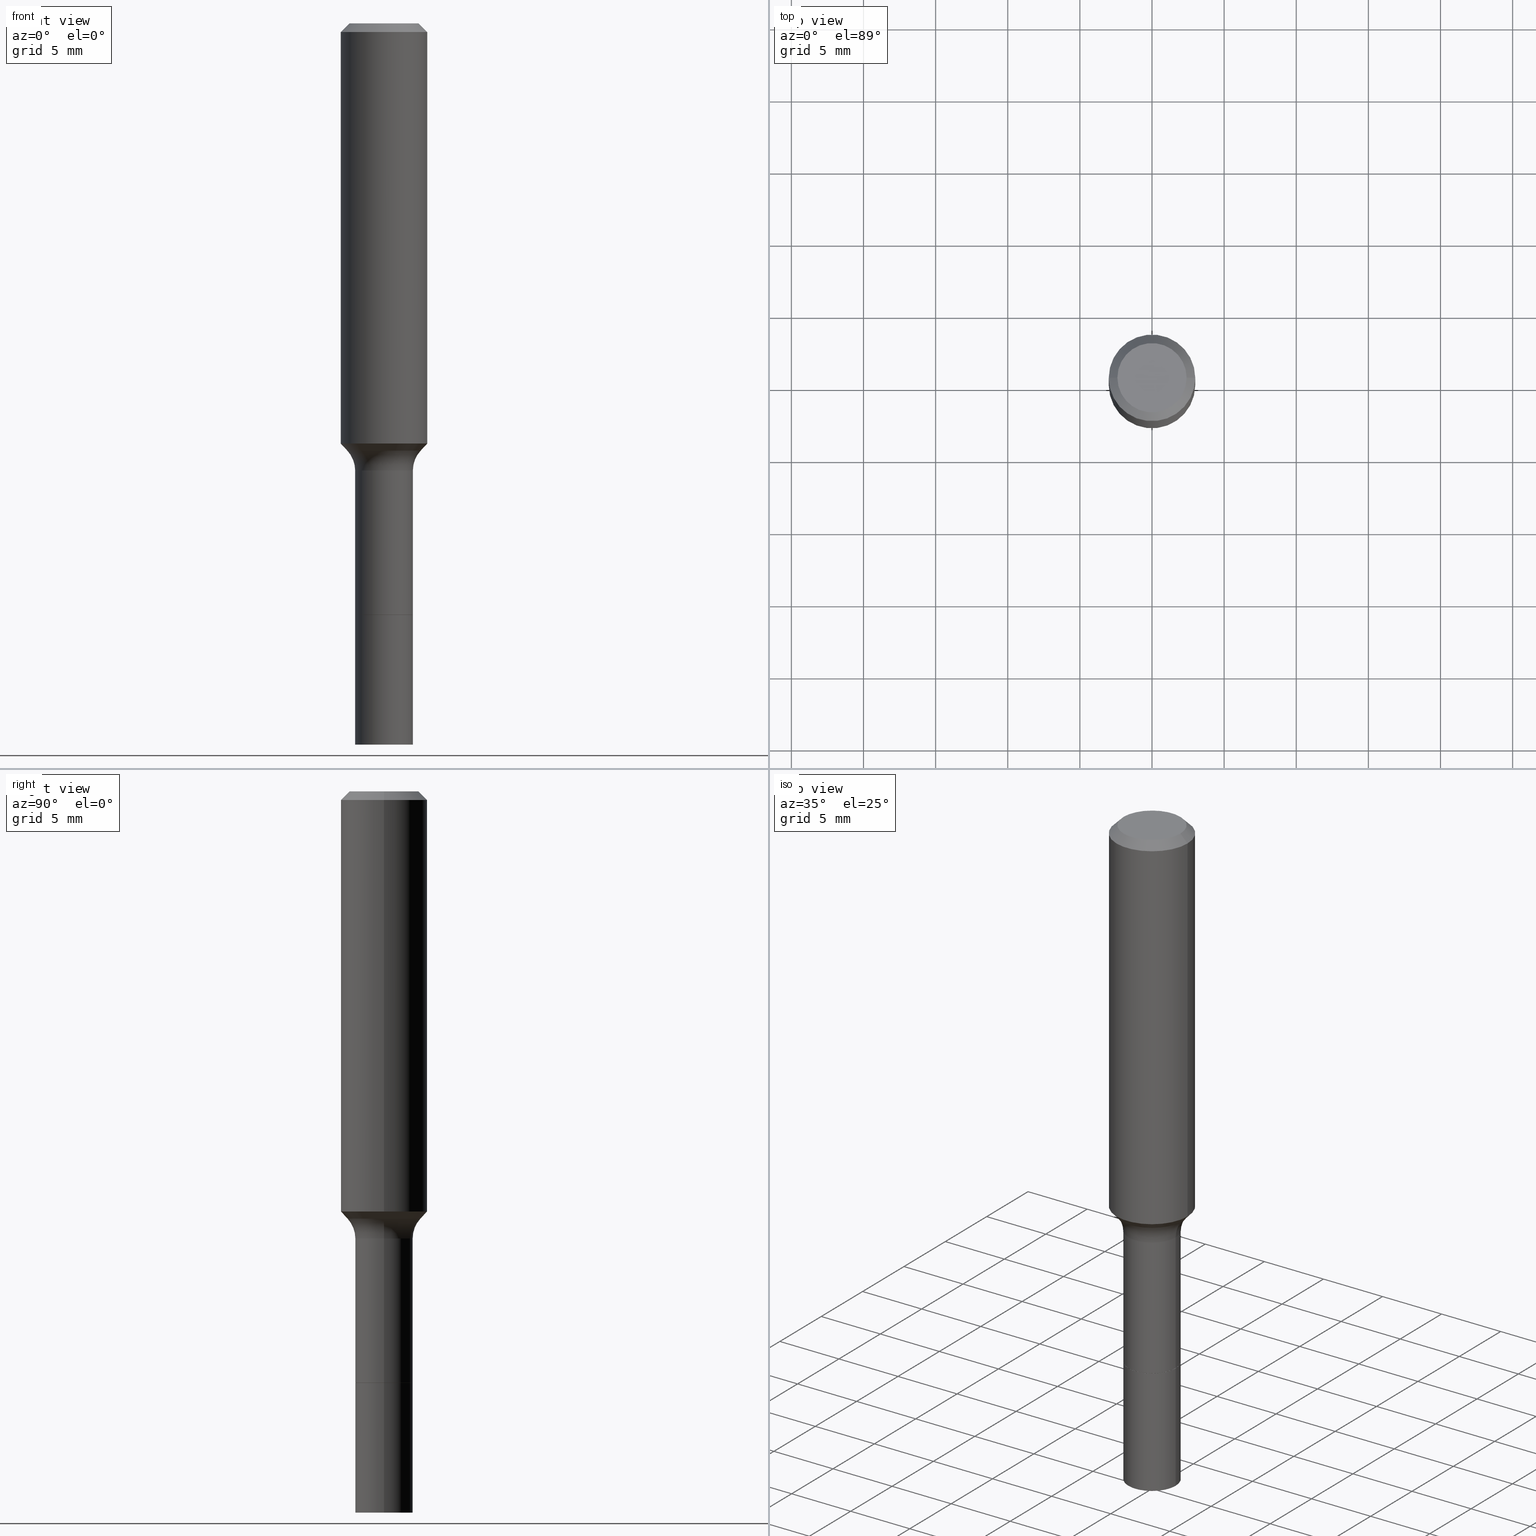
[diagram: canonical four-view strip — front | top / right | iso, engineering-drawing reading convention]
A machine part, canonical four-view strip (front | top / right | iso — engineering-drawing reading convention). The complete STEP part file that produces these views, byte-faithful:
ISO-10303-21;
HEADER;
FILE_DESCRIPTION (( 'STEP AP203' ),
    '1' );
FILE_NAME ('67085.STEP',
    '2025-04-01T15:27:59',
    ( '' ),
    ( '' ),
    'SwSTEP 2.0',
    'SolidWorks 2024',
    '' );
FILE_SCHEMA (( 'CONFIG_CONTROL_DESIGN' ));
ENDSEC;

DATA;
#1 = DIRECTION ( 'NONE',  ( -1.000000000000000000, 6.982962677686265922E-15, -4.876176775795935793E-29 ) ) ;
#2 = EDGE_LOOP ( 'NONE', ( #42, #359 ) ) ;
#3 = CARTESIAN_POINT ( 'NONE',  ( 2.984694677948959472E-29, -4.261352974058059028E-15, -1.220499999999999918 ) ) ;
#4 = ORIENTED_EDGE ( 'NONE', *, *, #140, .T. ) ;
#5 = EDGE_CURVE ( 'NONE', #391, #61, #286, .T. ) ;
#6 = PLANE ( 'NONE',  #143 ) ;
#7 = AXIS2_PLACEMENT_3D ( 'NONE', #456, #220, #366 ) ;
#8 = ADVANCED_FACE ( 'NONE', ( #362 ), #515, .T. ) ;
#9 = VERTEX_POINT ( 'NONE', #255 ) ;
#10 = ORIENTED_EDGE ( 'NONE', *, *, #167, .T. ) ;
#11 = EDGE_CURVE ( 'NONE', #435, #438, #134, .T. ) ;
#12 = CONICAL_SURFACE ( 'NONE', #35, 0.1180999999999999966, 0.7853981633974461696 ) ;
#13 = CARTESIAN_POINT ( 'NONE',  ( -0.1002417038704663810, -3.358598065221922092E-15, -1.165940131195000173 ) ) ;
#14 = CLOSED_SHELL ( 'NONE', ( #22, #471, #387, #322 ) ) ;
#15 = DIRECTION ( 'NONE',  ( 1.000000000000000000, -6.982962677686266711E-15, 0.000000000000000000 ) ) ;
#16 = EDGE_CURVE ( 'NONE', #350, #37, #96, .T. ) ;
#17 = DIRECTION ( 'NONE',  ( -2.445468806185136597E-29, 3.491481338843145583E-15, 1.000000000000000000 ) ) ;
#18 = LOCAL_TIME ( 11, 27, 59.00000000000000000, #265 ) ;
#19 = AXIS2_PLACEMENT_3D ( 'NONE', #352, #398, #474 ) ;
#20 = LINE ( 'NONE', #408, #193 ) ;
#21 = CARTESIAN_POINT ( 'NONE',  ( 3.948209387585902623E-29, -5.636996621562256693E-15, -1.614499999999999602 ) ) ;
#22 = ADVANCED_FACE ( 'NONE', ( #495 ), #293, .T. ) ;
#23 = DIRECTION ( 'NONE',  ( -2.445468806185136597E-29, 3.491481338843145583E-15, 1.000000000000000000 ) ) ;
#24 = CALENDAR_DATE ( 2025, 1, 4 ) ;
#25 = ORIENTED_EDGE ( 'NONE', *, *, #502, .T. ) ;
#26 = CC_DESIGN_APPROVAL ( #282, ( #257 ) ) ;
#27 = CIRCLE ( 'NONE', #457, 0.09447999999999998066 ) ;
#28 = DIRECTION ( 'NONE',  ( -1.000000000000000000, 6.982962677686266711E-15, 0.000000000000000000 ) ) ;
#29 = APPROVAL_ROLE ( '' ) ;
#30 = CARTESIAN_POINT ( 'NONE',  ( 0.07875000000000004219, -6.186904932430052406E-15, -1.614500000000000046 ) ) ;
#31 = PERSON_AND_ORGANIZATION_ROLE ( 'classification_officer' ) ;
#32 = DIRECTION ( 'NONE',  ( -2.445468806185136597E-29, 3.491481338843145583E-15, 1.000000000000000000 ) ) ;
#33 = EDGE_LOOP ( 'NONE', ( #70, #266, #4, #127 ) ) ;
#34 = DIRECTION ( 'NONE',  ( 2.438088387897960049E-29, -3.491481338843145188E-15, -1.000000000000000000 ) ) ;
#35 = AXIS2_PLACEMENT_3D ( 'NONE', #232, #509, #28 ) ;
#36 = DIRECTION ( 'NONE',  ( -2.445468806185136597E-29, 3.491481338843145583E-15, 1.000000000000000000 ) ) ;
#37 = VERTEX_POINT ( 'NONE', #99 ) ;
#38 = DIRECTION ( 'NONE',  ( -2.445468806185136597E-29, 3.491481338843145583E-15, 1.000000000000000000 ) ) ;
#39 = ORIENTED_EDGE ( 'NONE', *, *, #494, .T. ) ;
#40 = APPROVAL_DATE_TIME ( #227, #361 ) ;
#41 = DIRECTION ( 'NONE',  ( 1.000000000000000000, -6.982962677686266711E-15, 0.000000000000000000 ) ) ;
#42 = ORIENTED_EDGE ( 'NONE', *, *, #430, .F. ) ;
#43 = ADVANCED_FACE ( 'NONE', ( #52 ), #353, .T. ) ;
#44 = EDGE_CURVE ( 'NONE', #512, #200, #481, .T. ) ;
#45 = CARTESIAN_POINT ( 'NONE',  ( 3.946986653182810382E-29, -5.635250880892837556E-15, -1.614000000000000101 ) ) ;
#46 = VERTEX_POINT ( 'NONE', #498 ) ;
#47 = DIRECTION ( 'NONE',  ( 2.445468806185136597E-29, -3.491481338843145583E-15, -1.000000000000000000 ) ) ;
#48 = EDGE_CURVE ( 'NONE', #73, #81, #274, .T. ) ;
#49 = ORIENTED_EDGE ( 'NONE', *, *, #295, .F. ) ;
#50 = CARTESIAN_POINT ( 'NONE',  ( 0.09447999999999998066, -7.704367267948738690E-16, -3.085620075131172158E-17 ) ) ;
#51 = DIRECTION ( 'NONE',  ( -2.445468806185136597E-29, 3.491481338843145583E-15, 1.000000000000000000 ) ) ;
#52 = FACE_OUTER_BOUND ( 'NONE', #482, .T. ) ;
#53 = PRODUCT_RELATED_PRODUCT_CATEGORY ( 'detail', '', ( #245 ) ) ;
#54 = AXIS2_PLACEMENT_3D ( 'NONE', #59, #260, #182 ) ;
#55 = DIRECTION ( 'NONE',  ( -2.445468806185136597E-29, 3.491481338843145583E-15, 1.000000000000000000 ) ) ;
#56 = DIRECTION ( 'NONE',  ( 1.000000000000000000, -6.982962677686267499E-15, 0.000000000000000000 ) ) ;
#57 = CIRCLE ( 'NONE', #90, 0.07999999999999996003 ) ;
#58 = EDGE_CURVE ( 'NONE', #73, #37, #284, .T. ) ;
#59 = CARTESIAN_POINT ( 'NONE',  ( 3.948209387585902623E-29, -5.636996621562258271E-15, -1.614500000000000046 ) ) ;
#60 = CARTESIAN_POINT ( 'NONE',  ( 0.1181000000000000660, -8.246878922347485584E-16, 5.758764772215003944E-30 ) ) ;
#61 = VERTEX_POINT ( 'NONE', #335 ) ;
#62 = CARTESIAN_POINT ( 'NONE',  ( 0.000000000000000000, 0.000000000000000000, 0.000000000000000000 ) ) ;
#63 = AXIS2_PLACEMENT_3D ( 'NONE', #480, #314, #246 ) ;
#64 = DATE_TIME_ROLE ( 'classification_date' ) ;
#65 = VECTOR ( 'NONE', #440, 39.37007874015748143 ) ;
#66 = DIRECTION ( 'NONE',  ( -6.982962677686266711E-15, -1.000000000000000000, 3.491481338843145583E-15 ) ) ;
#67 = EDGE_LOOP ( 'NONE', ( #343, #462, #470, #205 ) ) ;
#68 = CC_DESIGN_PERSON_AND_ORGANIZATION_ASSIGNMENT ( #461, #31, ( #192 ) ) ;
#69 = DIRECTION ( 'NONE',  ( 1.000000000000000000, -6.982962677686261977E-15, 0.000000000000000000 ) ) ;
#70 = ORIENTED_EDGE ( 'NONE', *, *, #167, .F. ) ;
#71 = VECTOR ( 'NONE', #333, 39.37007874015748143 ) ;
#72 = CYLINDRICAL_SURFACE ( 'NONE', #331, 0.1181000000000000660 ) ;
#73 = VERTEX_POINT ( 'NONE', #13 ) ;
#74 = CIRCLE ( 'NONE', #219, 0.1002417038704664781 ) ;
#75 = CARTESIAN_POINT ( 'NONE',  ( 5.776197320209328408E-31, -8.246878922347560526E-17, -0.02362000000000014435 ) ) ;
#76 = ORIENTED_EDGE ( 'NONE', *, *, #58, .T. ) ;
#77 = MANIFOLD_SOLID_BREP ( 'Body-Move/Copy2[2]', #497 ) ;
#78 = APPLICATION_CONTEXT ( 'configuration controlled 3d designs of mechanical parts and assemblies' ) ;
#79 = COORDINATED_UNIVERSAL_TIME_OFFSET ( 5, 0, .BEHIND. ) ;
#80 = CARTESIAN_POINT ( 'NONE',  ( -0.07875000000000011158, -5.695436414126414610E-15, -1.968500000000000139 ) ) ;
#81 = VERTEX_POINT ( 'NONE', #365 ) ;
#82 = PERSON ( 'UNSPECIFIED', 'UNSPECIFIED', 'UNSPECIFIED', ('UNSPECIFIED'), ('UNSPECIFIED'), ('UNSPECIFIED') ) ;
#83 = AXIS2_PLACEMENT_3D ( 'NONE', #175, #55, #56 ) ;
#84 = CARTESIAN_POINT ( 'NONE',  ( 5.776197320209328408E-31, -8.246878922347560526E-17, -0.02362000000000014435 ) ) ;
#85 = ORIENTED_EDGE ( 'NONE', *, *, #140, .F. ) ;
#86 = LOCAL_TIME ( 11, 27, 59.00000000000000000, #79 ) ;
#87 = CARTESIAN_POINT ( 'NONE',  ( 2.851270220716778580E-29, -4.070858210275671756E-15, -1.165940131195000173 ) ) ;
#88 = AXIS2_PLACEMENT_3D ( 'NONE', #289, #47, #210 ) ;
#89 = DIRECTION ( 'NONE',  ( -2.445468806185136877E-29, 3.491481338843145188E-15, 1.000000000000000000 ) ) ;
#90 = AXIS2_PLACEMENT_3D ( 'NONE', #345, #66, #464 ) ;
#91 = DIRECTION ( 'NONE',  ( 1.000000000000000000, -6.982962677686269077E-15, 0.000000000000000000 ) ) ;
#92 = EDGE_LOOP ( 'NONE', ( #171, #340, #132, #155 ) ) ;
#93 = PRODUCT_DEFINITION_SHAPE ( 'NONE', 'NONE',  #257 ) ;
#94 = DIRECTION ( 'NONE',  ( 1.000000000000000000, -6.982962677686266711E-15, 0.000000000000000000 ) ) ;
#95 = DIRECTION ( 'NONE',  ( 1.000000000000000000, -6.982962677686266711E-15, 0.000000000000000000 ) ) ;
#96 = LINE ( 'NONE', #411, #375 ) ;
#97 = DIRECTION ( 'NONE',  ( -2.445468806185136877E-29, 3.491481338843145188E-15, 1.000000000000000000 ) ) ;
#98 = ADVANCED_FACE ( 'NONE', ( #496 ), #216, .T. ) ;
#99 = CARTESIAN_POINT ( 'NONE',  ( -0.07874999999999994504, -4.388749523064369885E-15, -1.220499999999999918 ) ) ;
#100 = CC_DESIGN_PERSON_AND_ORGANIZATION_ASSIGNMENT ( #459, #339, ( #409 ) ) ;
#101 = LINE ( 'NONE', #30, #131 ) ;
#102 = MECHANICAL_CONTEXT ( 'NONE', #78, 'mechanical' ) ;
#103 = APPLICATION_CONTEXT ( 'configuration controlled 3d designs of mechanical parts and assemblies' ) ;
#104 = DIRECTION ( 'NONE',  ( -2.445468806185136597E-29, 3.491481338843145583E-15, 1.000000000000000000 ) ) ;
#105 = CIRCLE ( 'NONE', #188, 0.07874999999999994504 ) ;
#106 = ORIENTED_EDGE ( 'NONE', *, *, #138, .T. ) ;
#107 = CARTESIAN_POINT ( 'NONE',  ( 0.000000000000000000, 0.000000000000000000, 0.000000000000000000 ) ) ;
#108 = EDGE_CURVE ( 'NONE', #61, #250, #181, .T. ) ;
#109 = COORDINATED_UNIVERSAL_TIME_OFFSET ( 5, 0, .BEHIND. ) ;
#110 = APPROVAL_PERSON_ORGANIZATION ( #346, #282, #148 ) ;
#111 = CIRCLE ( 'NONE', #401, 0.07875000000000000056 ) ;
#112 = DIRECTION ( 'NONE',  ( -2.445468806185136877E-29, 3.491481338843145188E-15, 1.000000000000000000 ) ) ;
#113 = DATE_AND_TIME ( #163, #86 ) ;
#114 = ORIENTED_EDGE ( 'NONE', *, *, #390, .F. ) ;
#115 = PLANE ( 'NONE',  #426 ) ;
#116 = ORIENTED_EDGE ( 'NONE', *, *, #136, .T. ) ;
#117 = ADVANCED_FACE ( 'NONE', ( #373 ), #394, .T. ) ;
#118 = DIRECTION ( 'NONE',  ( -2.445468806185136597E-29, 3.491481338843145583E-15, 1.000000000000000000 ) ) ;
#119 = CIRCLE ( 'NONE', #444, 0.07825000000000000011 ) ;
#120 = DIRECTION ( 'NONE',  ( -2.445468806185136597E-29, 3.491481338843145583E-15, 1.000000000000000000 ) ) ;
#121 = ORIENTED_EDGE ( 'NONE', *, *, #48, .T. ) ;
#122 = CONICAL_SURFACE ( 'NONE', #19, 0.1002417038704664781, 0.7504915783575603072 ) ;
#123 = LINE ( 'NONE', #434, #371 ) ;
#124 = EDGE_LOOP ( 'NONE', ( #231, #239, #233, #39 ) ) ;
#125 = VECTOR ( 'NONE', #89, 39.37007874015748143 ) ;
#126 = DIRECTION ( 'NONE',  ( -2.445468806185136597E-29, 3.491481338843145583E-15, 1.000000000000000000 ) ) ;
#127 = ORIENTED_EDGE ( 'NONE', *, *, #240, .F. ) ;
#128 = CIRCLE ( 'NONE', #311, 0.07875000000000011158 ) ;
#129 = DIRECTION ( 'NONE',  ( 1.000000000000000000, -6.982962677686265133E-15, 0.000000000000000000 ) ) ;
#130 = ORIENTED_EDGE ( 'NONE', *, *, #412, .F. ) ;
#131 = VECTOR ( 'NONE', #187, 39.37007874015748143 ) ;
#132 = ORIENTED_EDGE ( 'NONE', *, *, #138, .F. ) ;
#133 = AXIS2_PLACEMENT_3D ( 'NONE', #176, #256, #413 ) ;
#134 = LINE ( 'NONE', #449, #71 ) ;
#135 = CIRCLE ( 'NONE', #152, 0.07875000000000000056 ) ;
#136 = EDGE_CURVE ( 'NONE', #37, #438, #105, .T. ) ;
#137 = DIRECTION ( 'NONE',  ( -2.445468806185136597E-29, 3.491481338843145583E-15, 1.000000000000000000 ) ) ;
#138 = EDGE_CURVE ( 'NONE', #438, #37, #431, .T. ) ;
#139 = FACE_OUTER_BOUND ( 'NONE', #272, .T. ) ;
#140 = EDGE_CURVE ( 'NONE', #9, #435, #20, .T. ) ;
#141 = DIRECTION ( 'NONE',  ( 1.000000000000000000, -6.982962677686267499E-15, 0.000000000000000000 ) ) ;
#142 = CARTESIAN_POINT ( 'NONE',  ( -0.1180999999999999966, 7.422191030112725094E-16, -0.02362000000000014435 ) ) ;
#143 = AXIS2_PLACEMENT_3D ( 'NONE', #161, #321, #1 ) ;
#144 = CARTESIAN_POINT ( 'NONE',  ( -0.1181000000000001354, -3.164843004536825664E-15, -1.146789453211333409 ) ) ;
#145 = CARTESIAN_POINT ( 'NONE',  ( 0.000000000000000000, 0.000000000000000000, 0.000000000000000000 ) ) ;
#146 = APPROVAL ( #392, 'UNSPECIFIED' ) ;
#147 = DIRECTION ( 'NONE',  ( -1.000000000000000000, 6.982962677686265922E-15, -4.876176775795935793E-29 ) ) ;
#148 = APPROVAL_ROLE ( '' ) ;
#149 = CARTESIAN_POINT ( 'NONE',  ( 0.07875000000000000056, -6.186904932430050828E-15, -1.614500000000000046 ) ) ;
#150 = PERSON_AND_ORGANIZATION ( #82, #202 ) ;
#151 = EDGE_LOOP ( 'NONE', ( #236, #197 ) ) ;
#152 = AXIS2_PLACEMENT_3D ( 'NONE', #45, #36, #513 ) ;
#153 = TOROIDAL_SURFACE ( 'NONE', #466, 0.1587499999999999190, 0.07999999999999996003 ) ;
#154 = DIRECTION ( 'NONE',  ( 1.000000000000000000, -6.982962677686265922E-15, 4.876176775795935793E-29 ) ) ;
#155 = ORIENTED_EDGE ( 'NONE', *, *, #11, .F. ) ;
#156 = EDGE_CURVE ( 'NONE', #243, #165, #292, .T. ) ;
#157 = DIRECTION ( 'NONE',  ( -2.445468806185136597E-29, 3.491481338843145583E-15, 1.000000000000000000 ) ) ;
#158 = ORIENTED_EDGE ( 'NONE', *, *, #502, .F. ) ;
#159 = AXIS2_PLACEMENT_3D ( 'NONE', #215, #451, #327 ) ;
#160 = ADVANCED_FACE ( 'NONE', ( #139 ), #486, .F. ) ;
#161 = CARTESIAN_POINT ( 'NONE',  ( 4.813905344975441835E-29, -6.872981015512731707E-15, -1.968500000000000139 ) ) ;
#162 = ORIENTED_EDGE ( 'NONE', *, *, #44, .F. ) ;
#163 = CALENDAR_DATE ( 2025, 1, 4 ) ;
#164 = CARTESIAN_POINT ( 'NONE',  ( 3.948209387585902623E-29, -5.636996621562256693E-15, -1.614499999999999602 ) ) ;
#165 = VERTEX_POINT ( 'NONE', #454 ) ;
#166 = CARTESIAN_POINT ( 'NONE',  ( 3.948209387585902623E-29, -5.636996621562256693E-15, -1.614499999999999602 ) ) ;
#167 = EDGE_CURVE ( 'NONE', #325, #350, #213, .T. ) ;
#168 = ORIENTED_EDGE ( 'NONE', *, *, #48, .F. ) ;
#169 = AXIS2_PLACEMENT_3D ( 'NONE', #259, #137, #95 ) ;
#170 = DIRECTION ( 'NONE',  ( -2.445468806185136597E-29, 3.491481338843145583E-15, 1.000000000000000000 ) ) ;
#171 = ORIENTED_EDGE ( 'NONE', *, *, #407, .T. ) ;
#172 =( CONVERSION_BASED_UNIT ( 'INCH', #363 ) LENGTH_UNIT ( ) NAMED_UNIT ( #288 ) );
#173 = AXIS2_PLACEMENT_3D ( 'NONE', #180, #417, #374 ) ;
#174 = ORIENTED_EDGE ( 'NONE', *, *, #287, .F. ) ;
#175 = CARTESIAN_POINT ( 'NONE',  ( 3.948209387585902623E-29, -5.636996621562256693E-15, -1.614499999999999602 ) ) ;
#176 = CARTESIAN_POINT ( 'NONE',  ( -0.1587499999999999190, -3.133366381038900756E-15, -1.220499999999999918 ) ) ;
#177 = LOCAL_TIME ( 11, 27, 59.00000000000000000, #507 ) ;
#178 = DIRECTION ( 'NONE',  ( 1.000000000000000000, -6.982962677686267499E-15, 4.876176775795935793E-29 ) ) ;
#179 = CIRCLE ( 'NONE', #468, 0.07875000000000000056 ) ;
#180 = CARTESIAN_POINT ( 'NONE',  ( 2.984694677948959472E-29, -4.261352974058059028E-15, -1.220499999999999918 ) ) ;
#181 = CIRCLE ( 'NONE', #54, 0.07875000000000000056 ) ;
#182 = DIRECTION ( 'NONE',  ( 1.000000000000000000, -6.982962677686261977E-15, 0.000000000000000000 ) ) ;
#183 = UNCERTAINTY_MEASURE_WITH_UNIT (LENGTH_MEASURE( 1.000000000000000082E-05 ), #172, 'distance_accuracy_value', 'NONE');
#184 = DIRECTION ( 'NONE',  ( 1.000000000000000000, -6.982962677686261977E-15, 0.000000000000000000 ) ) ;
#185 = FACE_OUTER_BOUND ( 'NONE', #279, .T. ) ;
#186 = APPROVAL_DATE_TIME ( #113, #146 ) ;
#187 = DIRECTION ( 'NONE',  ( -2.445468806185136877E-29, 3.491481338843145188E-15, 1.000000000000000000 ) ) ;
#188 = AXIS2_PLACEMENT_3D ( 'NONE', #329, #51, #94 ) ;
#189 = DIRECTION ( 'NONE',  ( -2.445468806185136597E-29, 3.491481338843145583E-15, 1.000000000000000000 ) ) ;
#190 = EDGE_CURVE ( 'NONE', #200, #512, #27, .T. ) ;
#191 = ORIENTED_EDGE ( 'NONE', *, *, #190, .T. ) ;
#192 = SECURITY_CLASSIFICATION ( '', '', #383 ) ;
#193 = VECTOR ( 'NONE', #492, 39.37007874015748854 ) ;
#194 = CARTESIAN_POINT ( 'NONE',  ( 7.884162847242652072E-29, -4.872467750967618044E-19, -1.614500000000000046 ) ) ;
#195 = ADVANCED_FACE ( 'NONE', ( #458 ), #376, .F. ) ;
#196 = ORIENTED_EDGE ( 'NONE', *, *, #491, .F. ) ;
#197 = ORIENTED_EDGE ( 'NONE', *, *, #108, .T. ) ;
#198 = PERSON_AND_ORGANIZATION ( #82, #202 ) ;
#199 = FACE_OUTER_BOUND ( 'NONE', #2, .T. ) ;
#200 = VERTEX_POINT ( 'NONE', #506 ) ;
#201 = CIRCLE ( 'NONE', #206, 0.1181000000000001354 ) ;
#202 = ORGANIZATION ( 'UNSPECIFIED', 'UNSPECIFIED', '' ) ;
#203 = ADVANCED_FACE ( 'NONE', ( #419 ), #12, .T. ) ;
#204 = CARTESIAN_POINT ( 'NONE',  ( 4.813905344975441835E-29, -6.872981015512731707E-15, -1.968500000000000139 ) ) ;
#205 = ORIENTED_EDGE ( 'NONE', *, *, #334, .F. ) ;
#206 = AXIS2_PLACEMENT_3D ( 'NONE', #276, #118, #358 ) ;
#207 = DIRECTION ( 'NONE',  ( -2.445468806185136597E-29, 3.491481338843145583E-15, 1.000000000000000000 ) ) ;
#208 = ORIENTED_EDGE ( 'NONE', *, *, #136, .F. ) ;
#209 = AXIS2_PLACEMENT_3D ( 'NONE', #253, #490, #368 ) ;
#210 = DIRECTION ( 'NONE',  ( -1.000000000000000000, 6.982962677686266711E-15, 0.000000000000000000 ) ) ;
#211 = ADVANCED_FACE ( 'NONE', ( #185 ), #115, .F. ) ;
#212 = ORIENTED_EDGE ( 'NONE', *, *, #430, .T. ) ;
#213 = LINE ( 'NONE', #386, #270 ) ;
#214 = CC_DESIGN_PERSON_AND_ORGANIZATION_ASSIGNMENT ( #198, #306, ( #257 ) ) ;
#215 = CARTESIAN_POINT ( 'NONE',  ( 3.948209387585902623E-29, -5.636996621562258271E-15, -1.614500000000000046 ) ) ;
#216 = CYLINDRICAL_SURFACE ( 'NONE', #297, 0.07874999999999997280 ) ;
#217 = CC_DESIGN_APPROVAL ( #361, ( #409 ) ) ;
#218 = DIRECTION ( 'NONE',  ( -2.445468806185136597E-29, 3.491481338843145583E-15, 1.000000000000000000 ) ) ;
#219 = AXIS2_PLACEMENT_3D ( 'NONE', #87, #207, #406 ) ;
#220 = DIRECTION ( 'NONE',  ( -2.445468806185136597E-29, 3.491481338843145583E-15, 1.000000000000000000 ) ) ;
#221 = DIRECTION ( 'NONE',  ( 1.000000000000000000, -6.982962677686267499E-15, 4.875432709231658792E-29 ) ) ;
#222 = DATE_TIME_ROLE ( 'creation_date' ) ;
#223 = ORIENTED_EDGE ( 'NONE', *, *, #156, .F. ) ;
#224 = FACE_OUTER_BOUND ( 'NONE', #92, .T. ) ;
#225 = PERSON_AND_ORGANIZATION_ROLE ( 'creator' ) ;
#226 = CARTESIAN_POINT ( 'NONE',  ( 3.948209387585902623E-29, -5.636996621562258271E-15, -1.614500000000000046 ) ) ;
#227 = DATE_AND_TIME ( #24, #518 ) ;
#228 = ORIENTED_EDGE ( 'NONE', *, *, #5, .T. ) ;
#229 = ADVANCED_FACE ( 'NONE', ( #262 ), #72, .T. ) ;
#230 = CARTESIAN_POINT ( 'NONE',  ( 3.948209387585902623E-29, -5.636996621562258271E-15, -1.614500000000000046 ) ) ;
#231 = ORIENTED_EDGE ( 'NONE', *, *, #489, .F. ) ;
#232 = CARTESIAN_POINT ( 'NONE',  ( 5.776197320209328408E-31, -8.246878922347560526E-17, -0.02362000000000014435 ) ) ;
#233 = ORIENTED_EDGE ( 'NONE', *, *, #295, .T. ) ;
#234 = AXIS2_PLACEMENT_3D ( 'NONE', #84, #170, #41 ) ;
#235 = CARTESIAN_POINT ( 'NONE',  ( 0.07874999999999994504, -4.811261284925852373E-15, -1.220499999999999918 ) ) ;
#236 = ORIENTED_EDGE ( 'NONE', *, *, #248, .T. ) ;
#237 =( NAMED_UNIT ( * ) SI_UNIT ( $, .STERADIAN. ) SOLID_ANGLE_UNIT ( ) );
#238 = CARTESIAN_POINT ( 'NONE',  ( -0.1002417038704664781, -3.358598065221921304E-15, -1.165940131195000173 ) ) ;
#239 = ORIENTED_EDGE ( 'NONE', *, *, #190, .F. ) ;
#240 = EDGE_CURVE ( 'NONE', #350, #435, #111, .T. ) ;
#241 = APPROVAL_STATUS ( 'not_yet_approved' ) ;
#242 = LINE ( 'NONE', #315, #446 ) ;
#243 = VERTEX_POINT ( 'NONE', #144 ) ;
#244 = APPROVAL_PERSON_ORGANIZATION ( #150, #361, #377 ) ;
#245 = PRODUCT ( '67085', '67085', '', ( #102 ) ) ;
#246 = DIRECTION ( 'NONE',  ( 1.000000000000000000, -6.982962677686270655E-15, 0.000000000000000000 ) ) ;
#247 = ORIENTED_EDGE ( 'NONE', *, *, #511, .T. ) ;
#248 = EDGE_CURVE ( 'NONE', #250, #61, #179, .T. ) ;
#249 = DIRECTION ( 'NONE',  ( -2.445468806185136597E-29, 3.491481338843145583E-15, 1.000000000000000000 ) ) ;
#250 = VERTEX_POINT ( 'NONE', #149 ) ;
#251 =( NAMED_UNIT ( * ) PLANE_ANGLE_UNIT ( ) SI_UNIT ( $, .RADIAN. ) );
#252 = CC_DESIGN_DATE_AND_TIME_ASSIGNMENT ( #469, #222, ( #257 ) ) ;
#253 = CARTESIAN_POINT ( 'NONE',  ( 2.984694677948959472E-29, -4.261352974058059028E-15, -1.220499999999999918 ) ) ;
#254 = AXIS2_PLACEMENT_3D ( 'NONE', #75, #447, #404 ) ;
#255 = CARTESIAN_POINT ( 'NONE',  ( 0.07825000000000000011, -6.183413451091207821E-15, -1.614499999999999602 ) ) ;
#256 = DIRECTION ( 'NONE',  ( 7.105427357601001859E-15, 1.000000000000000000, -3.491481338843145583E-15 ) ) ;
#257 = PRODUCT_DEFINITION ( 'UNKNOWN', '', #409, #305 ) ;
#258 = AXIS2_PLACEMENT_3D ( 'NONE', #21, #298, #141 ) ;
#259 = CARTESIAN_POINT ( 'NONE',  ( 2.851270220716778580E-29, -4.070858210275671756E-15, -1.165940131195000173 ) ) ;
#260 = DIRECTION ( 'NONE',  ( -2.445468806185136597E-29, 3.491481338843145583E-15, 1.000000000000000000 ) ) ;
#261 = AXIS2_PLACEMENT_3D ( 'NONE', #107, #189, #503 ) ;
#262 = FACE_OUTER_BOUND ( 'NONE', #67, .T. ) ;
#263 = CALENDAR_DATE ( 2025, 1, 4 ) ;
#264 = DIRECTION ( 'NONE',  ( -2.438088387897960049E-29, 3.491481338843145188E-15, 1.000000000000000000 ) ) ;
#265 = COORDINATED_UNIVERSAL_TIME_OFFSET ( 5, 0, .BEHIND. ) ;
#266 = ORIENTED_EDGE ( 'NONE', *, *, #491, .T. ) ;
#267 = AXIS2_PLACEMENT_3D ( 'NONE', #393, #249, #129 ) ;
#268 = DIRECTION ( 'NONE',  ( 1.000000000000000000, -6.982962677686266711E-15, 4.876176775795936353E-29 ) ) ;
#269 = COORDINATED_UNIVERSAL_TIME_OFFSET ( 5, 0, .BEHIND. ) ;
#270 = VECTOR ( 'NONE', #460, 39.37007874015748854 ) ;
#271 = CYLINDRICAL_SURFACE ( 'NONE', #418, 0.1181000000000000660 ) ;
#272 = EDGE_LOOP ( 'NONE', ( #168, #76, #116, #174 ) ) ;
#273 = LINE ( 'NONE', #60, #416 ) ;
#274 = CIRCLE ( 'NONE', #505, 0.1002417038704664781 ) ;
#275 = ORIENTED_EDGE ( 'NONE', *, *, #5, .F. ) ;
#276 = CARTESIAN_POINT ( 'NONE',  ( 2.804437835090424514E-29, -4.003993975469504650E-15, -1.146789453211333409 ) ) ;
#277 = EDGE_LOOP ( 'NONE', ( #191, #403 ) ) ;
#278 = DIRECTION ( 'NONE',  ( 0.7071067811865460184, -7.319954787623251312E-15, -0.7071067811865490160 ) ) ;
#279 = EDGE_LOOP ( 'NONE', ( #158, #196 ) ) ;
#280 = PERSON_AND_ORGANIZATION_ROLE ( 'design_owner' ) ;
#281 = DIRECTION ( 'NONE',  ( -2.445468806185136597E-29, 3.491481338843145583E-15, 1.000000000000000000 ) ) ;
#282 = APPROVAL ( #241, 'UNSPECIFIED' ) ;
#283 = ORIENTED_EDGE ( 'NONE', *, *, #287, .T. ) ;
#284 = CIRCLE ( 'NONE', #133, 0.07999999999999996003 ) ;
#285 = DIRECTION ( 'NONE',  ( 1.000000000000000000, -6.982962677686268288E-15, 4.883557194083113462E-29 ) ) ;
#286 = LINE ( 'NONE', #445, #125 ) ;
#287 = EDGE_CURVE ( 'NONE', #81, #438, #57, .T. ) ;
#288 = DIMENSIONAL_EXPONENTS ( 1.000000000000000000, 0.000000000000000000, 0.000000000000000000, 0.000000000000000000, 0.000000000000000000, 0.000000000000000000, 0.000000000000000000 ) ;
#289 = CARTESIAN_POINT ( 'NONE',  ( 5.776197320209328408E-31, -8.246878922347560526E-17, -0.02362000000000014435 ) ) ;
#290 = AXIS2_PLACEMENT_3D ( 'NONE', #226, #342, #382 ) ;
#291 = EDGE_LOOP ( 'NONE', ( #479, #323, #514, #208 ) ) ;
#292 = LINE ( 'NONE', #452, #410 ) ;
#293 = CYLINDRICAL_SURFACE ( 'NONE', #159, 0.07875000000000004219 ) ;
#294 = CIRCLE ( 'NONE', #330, 0.07825000000000000011 ) ;
#295 = EDGE_CURVE ( 'NONE', #200, #165, #309, .T. ) ;
#296 = CARTESIAN_POINT ( 'NONE',  ( 2.851270220716778580E-29, -4.070858210275671756E-15, -1.165940131195000173 ) ) ;
#297 = AXIS2_PLACEMENT_3D ( 'NONE', #414, #17, #178 ) ;
#298 = DIRECTION ( 'NONE',  ( -2.445468806185136597E-29, 3.491481338843145583E-15, 1.000000000000000000 ) ) ;
#299 = PLANE ( 'NONE',  #290 ) ;
#300 = ADVANCED_FACE ( 'NONE', ( #224 ), #500, .T. ) ;
#301 = CARTESIAN_POINT ( 'NONE',  ( 3.772893820736570314E-46, -5.386692455541008845E-32, -1.542810037565835988E-17 ) ) ;
#302 = APPROVAL_STATUS ( 'not_yet_approved' ) ;
#303 = ORIENTED_EDGE ( 'NONE', *, *, #328, .F. ) ;
#304 = DIRECTION ( 'NONE',  ( -2.445468806185136597E-29, 3.491481338843145583E-15, 1.000000000000000000 ) ) ;
#305 = DESIGN_CONTEXT ( 'detailed design', #103, 'design' ) ;
#306 = PERSON_AND_ORGANIZATION_ROLE ( 'creator' ) ;
#307 = ORIENTED_EDGE ( 'NONE', *, *, #511, .F. ) ;
#308 = APPROVAL_PERSON_ORGANIZATION ( #310, #146, #29 ) ;
#309 = LINE ( 'NONE', #142, #372 ) ;
#310 = PERSON_AND_ORGANIZATION ( #82, #202 ) ;
#311 = AXIS2_PLACEMENT_3D ( 'NONE', #204, #157, #355 ) ;
#312 = CARTESIAN_POINT ( 'NONE',  ( -0.07875000000000000056, -4.388749523064369885E-15, -1.614000000000000101 ) ) ;
#313 = ORIENTED_EDGE ( 'NONE', *, *, #396, .T. ) ;
#314 = DIRECTION ( 'NONE',  ( -2.445468806185136597E-29, 3.491481338843145583E-15, 1.000000000000000000 ) ) ;
#315 = CARTESIAN_POINT ( 'NONE',  ( 0.1180999999999999966, -8.926936027602933910E-16, -0.02362000000000014435 ) ) ;
#316 = EDGE_LOOP ( 'NONE', ( #25, #10, #448, #85 ) ) ;
#317 = CC_DESIGN_DATE_AND_TIME_ASSIGNMENT ( #423, #64, ( #192 ) ) ;
#318 = DATE_AND_TIME ( #263, #399 ) ;
#319 = CARTESIAN_POINT ( 'NONE',  ( 0.1180999999999999966, -9.071566814582237199E-16, -0.02362000000000014435 ) ) ;
#320 = ORIENTED_EDGE ( 'NONE', *, *, #396, .F. ) ;
#321 = DIRECTION ( 'NONE',  ( 2.438088387897960049E-29, -3.491481338843145188E-15, -1.000000000000000000 ) ) ;
#322 = ADVANCED_FACE ( 'NONE', ( #379 ), #299, .F. ) ;
#323 = ORIENTED_EDGE ( 'NONE', *, *, #240, .T. ) ;
#324 = CYLINDRICAL_SURFACE ( 'NONE', #63, 0.07875000000000004219 ) ;
#325 = VERTEX_POINT ( 'NONE', #467 ) ;
#326 = ORIENTED_EDGE ( 'NONE', *, *, #489, .T. ) ;
#327 = DIRECTION ( 'NONE',  ( 1.000000000000000000, -6.982962677686270655E-15, 0.000000000000000000 ) ) ;
#328 = EDGE_CURVE ( 'NONE', #347, #250, #101, .T. ) ;
#329 = CARTESIAN_POINT ( 'NONE',  ( 2.984694677948959472E-29, -4.261352974058059028E-15, -1.220499999999999918 ) ) ;
#330 = AXIS2_PLACEMENT_3D ( 'NONE', #164, #281, #360 ) ;
#331 = AXIS2_PLACEMENT_3D ( 'NONE', #62, #23, #268 ) ;
#332 = DIRECTION ( 'NONE',  ( -2.445468806185136877E-29, 3.491481338843145188E-15, 1.000000000000000000 ) ) ;
#333 = DIRECTION ( 'NONE',  ( -2.445468806185136877E-29, 3.491481338843145188E-15, 1.000000000000000000 ) ) ;
#334 = EDGE_CURVE ( 'NONE', #46, #378, #273, .T. ) ;
#335 = CARTESIAN_POINT ( 'NONE',  ( -0.07875000000000000056, -5.695436414126415399E-15, -1.614500000000000046 ) ) ;
#336 = PERSON_AND_ORGANIZATION ( #82, #202 ) ;
#337 = AXIS2_PLACEMENT_3D ( 'NONE', #478, #120, #91 ) ;
#338 = FACE_OUTER_BOUND ( 'NONE', #395, .T. ) ;
#339 = PERSON_AND_ORGANIZATION_ROLE ( 'design_supplier' ) ;
#340 = ORIENTED_EDGE ( 'NONE', *, *, #16, .T. ) ;
#341 = CIRCLE ( 'NONE', #254, 0.1180999999999999966 ) ;
#342 = DIRECTION ( 'NONE',  ( 2.438088387897960049E-29, -3.491481338843145188E-15, -1.000000000000000000 ) ) ;
#343 = ORIENTED_EDGE ( 'NONE', *, *, #390, .T. ) ;
#344 = ADVANCED_FACE ( 'NONE', ( #338 ), #271, .T. ) ;
#345 = CARTESIAN_POINT ( 'NONE',  ( 0.1587499999999999190, -5.369898299140753237E-15, -1.220499999999999918 ) ) ;
#346 = PERSON_AND_ORGANIZATION ( #82, #202 ) ;
#347 = VERTEX_POINT ( 'NONE', #472 ) ;
#348 = CIRCLE ( 'NONE', #337, 0.1181000000000001354 ) ;
#349 = DIRECTION ( 'NONE',  ( 1.000000000000000000, -6.982962677686266711E-15, 4.876176775795936353E-29 ) ) ;
#350 = VERTEX_POINT ( 'NONE', #312 ) ;
#351 = CARTESIAN_POINT ( 'NONE',  ( 3.946986653182810382E-29, -5.635250880892837556E-15, -1.614000000000000101 ) ) ;
#352 = CARTESIAN_POINT ( 'NONE',  ( 2.851270220716778580E-29, -4.070858210275671756E-15, -1.165940131195000173 ) ) ;
#353 = CONICAL_SURFACE ( 'NONE', #169, 0.1002417038704664781, 0.7504915783575603072 ) ;
#354 = ORIENTED_EDGE ( 'NONE', *, *, #455, .F. ) ;
#355 = DIRECTION ( 'NONE',  ( 1.000000000000000000, -6.982962677686265133E-15, 0.000000000000000000 ) ) ;
#356 = AXIS2_PLACEMENT_3D ( 'NONE', #145, #499, #439 ) ;
#357 = ORIENTED_EDGE ( 'NONE', *, *, #108, .F. ) ;
#358 = DIRECTION ( 'NONE',  ( 1.000000000000000000, -6.982962677686269077E-15, 0.000000000000000000 ) ) ;
#359 = ORIENTED_EDGE ( 'NONE', *, *, #450, .F. ) ;
#360 = DIRECTION ( 'NONE',  ( 1.000000000000000000, -6.982962677686267499E-15, 0.000000000000000000 ) ) ;
#361 = APPROVAL ( #302, 'UNSPECIFIED' ) ;
#362 = FACE_OUTER_BOUND ( 'NONE', #316, .T. ) ;
#363 = LENGTH_MEASURE_WITH_UNIT ( LENGTH_MEASURE( 0.02539999999999999897 ), #487 );
#364 = ORIENTED_EDGE ( 'NONE', *, *, #334, .T. ) ;
#365 = CARTESIAN_POINT ( 'NONE',  ( 0.1002417038704663810, -4.770842287150817047E-15, -1.165940131195000173 ) ) ;
#366 = DIRECTION ( 'NONE',  ( 1.000000000000000000, -6.982962677686267499E-15, 4.875432709231658792E-29 ) ) ;
#367 = ADVANCED_FACE ( 'NONE', ( #432 ), #122, .T. ) ;
#368 = DIRECTION ( 'NONE',  ( 1.000000000000000000, -6.982962677686266711E-15, 0.000000000000000000 ) ) ;
#369 = CC_DESIGN_APPROVAL ( #146, ( #192 ) ) ;
#370 = EDGE_CURVE ( 'NONE', #378, #165, #341, .T. ) ;
#371 = VECTOR ( 'NONE', #516, 39.37007874015748143 ) ;
#372 = VECTOR ( 'NONE', #384, 39.37007874015748143 ) ;
#373 = FACE_OUTER_BOUND ( 'NONE', #33, .T. ) ;
#374 = DIRECTION ( 'NONE',  ( 1.000000000000000000, -6.982962677686268288E-15, 4.883557194083113462E-29 ) ) ;
#375 = VECTOR ( 'NONE', #97, 39.37007874015748143 ) ;
#376 = PLANE ( 'NONE',  #380 ) ;
#377 = APPROVAL_ROLE ( '' ) ;
#378 = VERTEX_POINT ( 'NONE', #319 ) ;
#379 = FACE_OUTER_BOUND ( 'NONE', #151, .T. ) ;
#380 = AXIS2_PLACEMENT_3D ( 'NONE', #301, #34, #147 ) ;
#381 = CALENDAR_DATE ( 2025, 1, 4 ) ;
#382 = DIRECTION ( 'NONE',  ( -1.000000000000000000, 6.982962677686265922E-15, -4.876176775795935793E-29 ) ) ;
#383 = SECURITY_CLASSIFICATION_LEVEL ( 'unclassified' ) ;
#384 = DIRECTION ( 'NONE',  ( -0.7071067811865460184, 2.468850131082241283E-15, -0.7071067811865490160 ) ) ;
#385 = EDGE_LOOP ( 'NONE', ( #275, #517, #475, #357 ) ) ;
#386 = CARTESIAN_POINT ( 'NONE',  ( -0.07825000000000000011, -5.080996930829978001E-15, -1.614499999999999602 ) ) ;
#387 = ADVANCED_FACE ( 'NONE', ( #389 ), #324, .T. ) ;
#388 = EDGE_LOOP ( 'NONE', ( #162, #326, #473, #49 ) ) ;
#389 = FACE_OUTER_BOUND ( 'NONE', #385, .T. ) ;
#390 = EDGE_CURVE ( 'NONE', #46, #243, #201, .T. ) ;
#391 = VERTEX_POINT ( 'NONE', #80 ) ;
#392 = APPROVAL_STATUS ( 'not_yet_approved' ) ;
#393 = CARTESIAN_POINT ( 'NONE',  ( 4.813905344975441835E-29, -6.872981015512731707E-15, -1.968500000000000139 ) ) ;
#394 = CONICAL_SURFACE ( 'NONE', #83, 0.07825000000000000011, 0.7853981633978239785 ) ;
#395 = EDGE_LOOP ( 'NONE', ( #223, #488, #364, #405 ) ) ;
#396 = EDGE_CURVE ( 'NONE', #73, #243, #476, .T. ) ;
#397 = APPLICATION_PROTOCOL_DEFINITION ( 'international standard', 'config_control_design', 1994, #103 ) ;
#398 = DIRECTION ( 'NONE',  ( -2.445468806185136597E-29, 3.491481338843145583E-15, 1.000000000000000000 ) ) ;
#399 = LOCAL_TIME ( 11, 27, 59.00000000000000000, #269 ) ;
#400 = EDGE_LOOP ( 'NONE', ( #212, #228, #501, #303 ) ) ;
#401 = AXIS2_PLACEMENT_3D ( 'NONE', #351, #304, #69 ) ;
#402 = FACE_OUTER_BOUND ( 'NONE', #508, .T. ) ;
#403 = ORIENTED_EDGE ( 'NONE', *, *, #44, .T. ) ;
#404 = DIRECTION ( 'NONE',  ( 1.000000000000000000, -6.982962677686266711E-15, 0.000000000000000000 ) ) ;
#405 = ORIENTED_EDGE ( 'NONE', *, *, #494, .F. ) ;
#406 = DIRECTION ( 'NONE',  ( 1.000000000000000000, -6.982962677686266711E-15, 0.000000000000000000 ) ) ;
#407 = EDGE_CURVE ( 'NONE', #435, #350, #135, .T. ) ;
#408 = CARTESIAN_POINT ( 'NONE',  ( 0.07825000000000000011, -6.183413451091207821E-15, -1.614499999999999602 ) ) ;
#409 = PRODUCT_DEFINITION_FORMATION_WITH_SPECIFIED_SOURCE ( 'ANY', '', #245, .NOT_KNOWN. ) ;
#410 = VECTOR ( 'NONE', #332, 39.37007874015748143 ) ;
#411 = CARTESIAN_POINT ( 'NONE',  ( -0.07874999999999997280, 5.595524044110787031E-16, -3.873661383575737091E-30 ) ) ;
#412 = EDGE_CURVE ( 'NONE', #243, #46, #348, .T. ) ;
#413 = DIRECTION ( 'NONE',  ( -1.000000000000000000, 7.105427357601001859E-15, 0.000000000000000000 ) ) ;
#414 = CARTESIAN_POINT ( 'NONE',  ( 0.000000000000000000, 0.000000000000000000, 0.000000000000000000 ) ) ;
#415 = CONICAL_SURFACE ( 'NONE', #88, 0.1180999999999999966, 0.7853981633974461696 ) ;
#416 = VECTOR ( 'NONE', #112, 39.37007874015748143 ) ;
#417 = DIRECTION ( 'NONE',  ( -2.445468806185136597E-29, 3.491481338843145583E-15, 1.000000000000000000 ) ) ;
#418 = AXIS2_PLACEMENT_3D ( 'NONE', #428, #32, #349 ) ;
#419 = FACE_OUTER_BOUND ( 'NONE', #388, .T. ) ;
#420 = APPROVAL_DATE_TIME ( #318, #282 ) ;
#421 = CARTESIAN_POINT ( 'NONE',  ( 7.545787641473140628E-46, -1.077338491108201769E-31, -3.085620075131671975E-17 ) ) ;
#422 = CC_DESIGN_PERSON_AND_ORGANIZATION_ASSIGNMENT ( #336, #225, ( #409 ) ) ;
#423 = DATE_AND_TIME ( #381, #18 ) ;
#424 =( GEOMETRIC_REPRESENTATION_CONTEXT ( 3 ) GLOBAL_UNCERTAINTY_ASSIGNED_CONTEXT ( ( #183 ) ) GLOBAL_UNIT_ASSIGNED_CONTEXT ( ( #172, #251, #237 ) ) REPRESENTATION_CONTEXT ( 'NONE', 'WORKASPACE' ) );
#425 = DIRECTION ( 'NONE',  ( -2.445468806185136597E-29, 3.491481338843145583E-15, 1.000000000000000000 ) ) ;
#426 = AXIS2_PLACEMENT_3D ( 'NONE', #194, #264, #154 ) ;
#427 = CALENDAR_DATE ( 2025, 1, 4 ) ;
#428 = CARTESIAN_POINT ( 'NONE',  ( 0.000000000000000000, 0.000000000000000000, 0.000000000000000000 ) ) ;
#429 = MANIFOLD_SOLID_BREP ( 'Body-Move/Copy2[1]', #14 ) ;
#430 = EDGE_CURVE ( 'NONE', #347, #391, #484, .T. ) ;
#431 = CIRCLE ( 'NONE', #209, 0.07874999999999994504 ) ;
#432 = FACE_OUTER_BOUND ( 'NONE', #477, .T. ) ;
#433 = CC_DESIGN_SECURITY_CLASSIFICATION ( #192, ( #409 ) ) ;
#434 = CARTESIAN_POINT ( 'NONE',  ( 0.1002417038704664781, -4.770842287150818625E-15, -1.165940131195000173 ) ) ;
#435 = VERTEX_POINT ( 'NONE', #483 ) ;
#436 = SHAPE_DEFINITION_REPRESENTATION ( #93, #510 ) ;
#437 = FACE_OUTER_BOUND ( 'NONE', #124, .T. ) ;
#438 = VERTEX_POINT ( 'NONE', #235 ) ;
#439 = DIRECTION ( 'NONE',  ( 1.000000000000000000, 0.000000000000000000, 0.000000000000000000 ) ) ;
#440 = DIRECTION ( 'NONE',  ( -0.6819983600624974773, 7.399397606724283421E-15, 0.7313537016191714590 ) ) ;
#441 = ORIENTED_EDGE ( 'NONE', *, *, #455, .T. ) ;
#442 = CC_DESIGN_PERSON_AND_ORGANIZATION_ASSIGNMENT ( #465, #280, ( #245 ) ) ;
#443 = DIRECTION ( 'NONE',  ( 1.000000000000000000, -6.982962677686267499E-15, 0.000000000000000000 ) ) ;
#444 = AXIS2_PLACEMENT_3D ( 'NONE', #166, #126, #443 ) ;
#445 = CARTESIAN_POINT ( 'NONE',  ( -0.07875000000000004219, -5.077444217151178681E-15, -1.614500000000000046 ) ) ;
#446 = VECTOR ( 'NONE', #278, 39.37007874015748143 ) ;
#447 = DIRECTION ( 'NONE',  ( -2.445468806185136597E-29, 3.491481338843145583E-15, 1.000000000000000000 ) ) ;
#448 = ORIENTED_EDGE ( 'NONE', *, *, #407, .F. ) ;
#449 = CARTESIAN_POINT ( 'NONE',  ( 0.07874999999999997280, -5.499083108677933457E-16, 3.839989210939298316E-30 ) ) ;
#450 = EDGE_CURVE ( 'NONE', #391, #347, #128, .T. ) ;
#451 = DIRECTION ( 'NONE',  ( -2.445468806185136597E-29, 3.491481338843145583E-15, 1.000000000000000000 ) ) ;
#452 = CARTESIAN_POINT ( 'NONE',  ( -0.1181000000000000660, 8.391509709326787887E-16, -5.809262341591047287E-30 ) ) ;
#453 = ADVANCED_FACE ( 'NONE', ( #437 ), #415, .T. ) ;
#454 = CARTESIAN_POINT ( 'NONE',  ( -0.1180999999999999966, -1.204080411413810673E-15, -0.02362000000000014435 ) ) ;
#455 = EDGE_CURVE ( 'NONE', #81, #46, #123, .T. ) ;
#456 = CARTESIAN_POINT ( 'NONE',  ( 7.545787641473140628E-46, -1.077338491108201769E-31, -3.085620075131671975E-17 ) ) ;
#457 = AXIS2_PLACEMENT_3D ( 'NONE', #421, #104, #221 ) ;
#458 = FACE_OUTER_BOUND ( 'NONE', #277, .T. ) ;
#459 = PERSON_AND_ORGANIZATION ( #82, #202 ) ;
#460 = DIRECTION ( 'NONE',  ( -0.7071067811868130271, 7.493145998871311837E-15, 0.7071067811862817853 ) ) ;
#461 = PERSON_AND_ORGANIZATION ( #82, #202 ) ;
#462 = ORIENTED_EDGE ( 'NONE', *, *, #156, .T. ) ;
#463 = ADVANCED_FACE ( 'NONE', ( #402 ), #153, .F. ) ;
#464 = DIRECTION ( 'NONE',  ( 1.000000000000000000, -6.982962677686262766E-15, 0.000000000000000000 ) ) ;
#465 = PERSON_AND_ORGANIZATION ( #82, #202 ) ;
#466 = AXIS2_PLACEMENT_3D ( 'NONE', #3, #38, #285 ) ;
#467 = CARTESIAN_POINT ( 'NONE',  ( -0.07825000000000000011, -5.078347703655868378E-15, -1.614499999999999602 ) ) ;
#468 = AXIS2_PLACEMENT_3D ( 'NONE', #230, #425, #184 ) ;
#469 = DATE_AND_TIME ( #427, #177 ) ;
#470 = ORIENTED_EDGE ( 'NONE', *, *, #370, .F. ) ;
#471 = ADVANCED_FACE ( 'NONE', ( #199 ), #6, .T. ) ;
#472 = CARTESIAN_POINT ( 'NONE',  ( 0.07875000000000011158, -7.422889326380526631E-15, -1.968500000000000139 ) ) ;
#473 = ORIENTED_EDGE ( 'NONE', *, *, #370, .T. ) ;
#474 = DIRECTION ( 'NONE',  ( 1.000000000000000000, -6.982962677686266711E-15, 0.000000000000000000 ) ) ;
#475 = ORIENTED_EDGE ( 'NONE', *, *, #328, .T. ) ;
#476 = LINE ( 'NONE', #238, #65 ) ;
#477 = EDGE_LOOP ( 'NONE', ( #247, #313, #114, #354 ) ) ;
#478 = CARTESIAN_POINT ( 'NONE',  ( 2.804437835090424514E-29, -4.003993975469504650E-15, -1.146789453211333409 ) ) ;
#479 = ORIENTED_EDGE ( 'NONE', *, *, #16, .F. ) ;
#480 = CARTESIAN_POINT ( 'NONE',  ( 3.948209387585902623E-29, -5.636996621562258271E-15, -1.614500000000000046 ) ) ;
#481 = CIRCLE ( 'NONE', #7, 0.09447999999999998066 ) ;
#482 = EDGE_LOOP ( 'NONE', ( #320, #121, #441, #130 ) ) ;
#483 = CARTESIAN_POINT ( 'NONE',  ( 0.07875000000000000056, -6.185159191760630902E-15, -1.614000000000000101 ) ) ;
#484 = CIRCLE ( 'NONE', #267, 0.07875000000000011158 ) ;
#485 = ORIENTED_EDGE ( 'NONE', *, *, #58, .F. ) ;
#486 = TOROIDAL_SURFACE ( 'NONE', #173, 0.1587499999999999190, 0.07999999999999996003 ) ;
#487 =( LENGTH_UNIT ( ) NAMED_UNIT ( * ) SI_UNIT ( $, .METRE. ) );
#488 = ORIENTED_EDGE ( 'NONE', *, *, #412, .T. ) ;
#489 = EDGE_CURVE ( 'NONE', #512, #378, #242, .T. ) ;
#490 = DIRECTION ( 'NONE',  ( -2.445468806185136597E-29, 3.491481338843145583E-15, 1.000000000000000000 ) ) ;
#491 = EDGE_CURVE ( 'NONE', #325, #9, #294, .T. ) ;
#492 = DIRECTION ( 'NONE',  ( 0.7071067811868130271, -2.468850131085038979E-15, 0.7071067811862817853 ) ) ;
#493 = CIRCLE ( 'NONE', #234, 0.1180999999999999966 ) ;
#494 = EDGE_CURVE ( 'NONE', #165, #378, #493, .T. ) ;
#495 = FACE_OUTER_BOUND ( 'NONE', #400, .T. ) ;
#496 = FACE_OUTER_BOUND ( 'NONE', #291, .T. ) ;
#497 = CLOSED_SHELL ( 'NONE', ( #8, #203, #229, #367, #160, #300, #98, #463, #43, #344, #453, #195, #211, #117 ) ) ;
#498 = CARTESIAN_POINT ( 'NONE',  ( 0.1181000000000001354, -4.828681867704253702E-15, -1.146789453211333409 ) ) ;
#499 = DIRECTION ( 'NONE',  ( 0.000000000000000000, 0.000000000000000000, 1.000000000000000000 ) ) ;
#500 = CYLINDRICAL_SURFACE ( 'NONE', #261, 0.07874999999999997280 ) ;
#501 = ORIENTED_EDGE ( 'NONE', *, *, #248, .F. ) ;
#502 = EDGE_CURVE ( 'NONE', #9, #325, #119, .T. ) ;
#503 = DIRECTION ( 'NONE',  ( 1.000000000000000000, -6.982962677686267499E-15, 4.876176775795935793E-29 ) ) ;
#504 = APPLICATION_PROTOCOL_DEFINITION ( 'international standard', 'config_control_design', 1994, #78 ) ;
#505 = AXIS2_PLACEMENT_3D ( 'NONE', #296, #218, #15 ) ;
#506 = CARTESIAN_POINT ( 'NONE',  ( -0.09447999999999998066, 7.009847083995354710E-16, -3.085620075132147757E-17 ) ) ;
#507 = COORDINATED_UNIVERSAL_TIME_OFFSET ( 5, 0, .BEHIND. ) ;
#508 = EDGE_LOOP ( 'NONE', ( #485, #307, #283, #106 ) ) ;
#509 = DIRECTION ( 'NONE',  ( 2.445468806185136597E-29, -3.491481338843145583E-15, -1.000000000000000000 ) ) ;
#510 = ADVANCED_BREP_SHAPE_REPRESENTATION ( '67085', ( #429, #77, #356 ), #424 ) ;
#511 = EDGE_CURVE ( 'NONE', #81, #73, #74, .T. ) ;
#512 = VERTEX_POINT ( 'NONE', #50 ) ;
#513 = DIRECTION ( 'NONE',  ( 1.000000000000000000, -6.982962677686261977E-15, 0.000000000000000000 ) ) ;
#514 = ORIENTED_EDGE ( 'NONE', *, *, #11, .T. ) ;
#515 = CONICAL_SURFACE ( 'NONE', #258, 0.07825000000000000011, 0.7853981633978239785 ) ;
#516 = DIRECTION ( 'NONE',  ( 0.6819983600624974773, -2.208861293262464364E-15, 0.7313537016191714590 ) ) ;
#517 = ORIENTED_EDGE ( 'NONE', *, *, #450, .T. ) ;
#518 = LOCAL_TIME ( 11, 27, 59.00000000000000000, #109 ) ;
ENDSEC;
END-ISO-10303-21;
